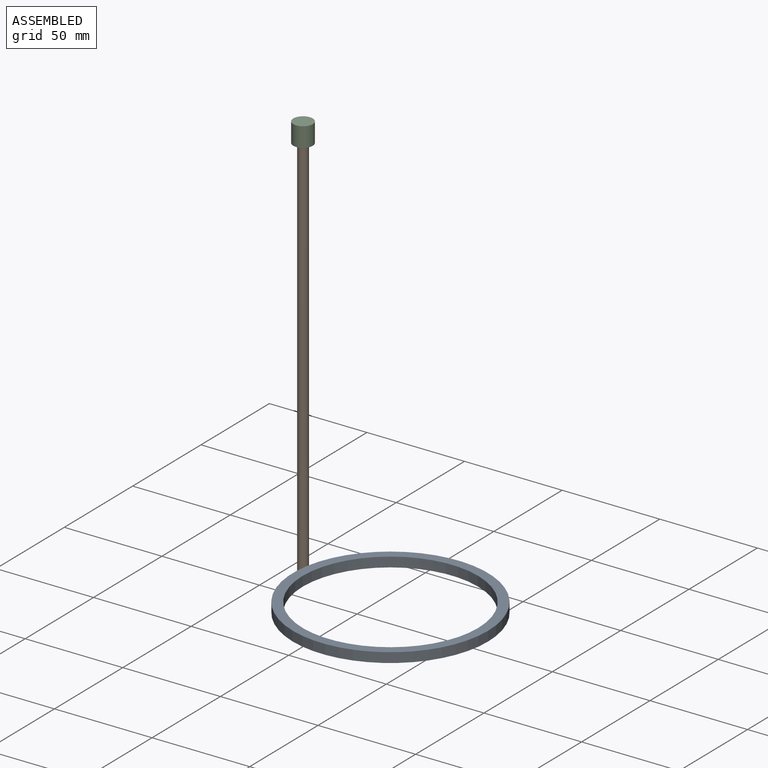
[diagram: assembled view]
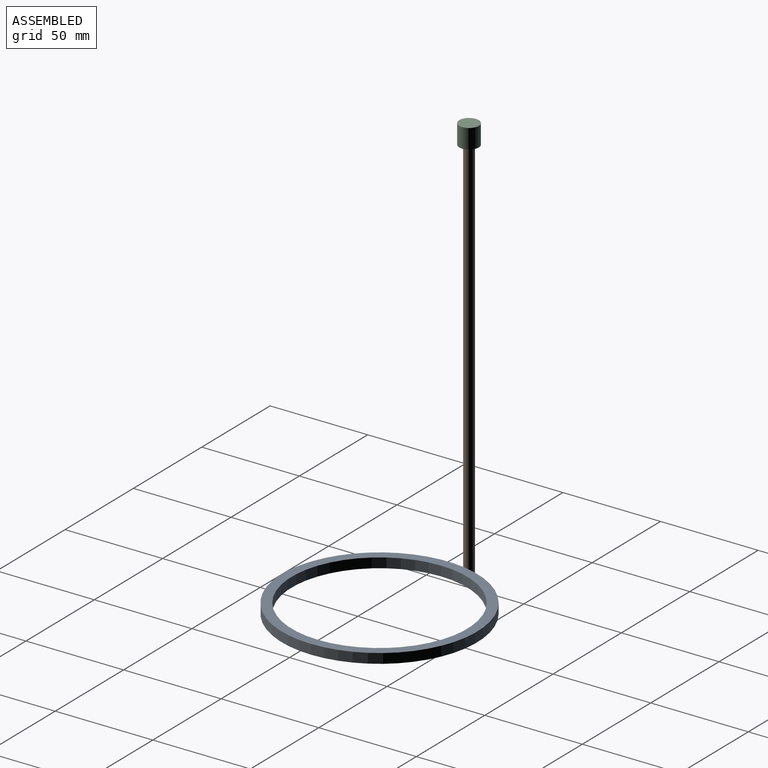
[diagram: assembled view, second angle]
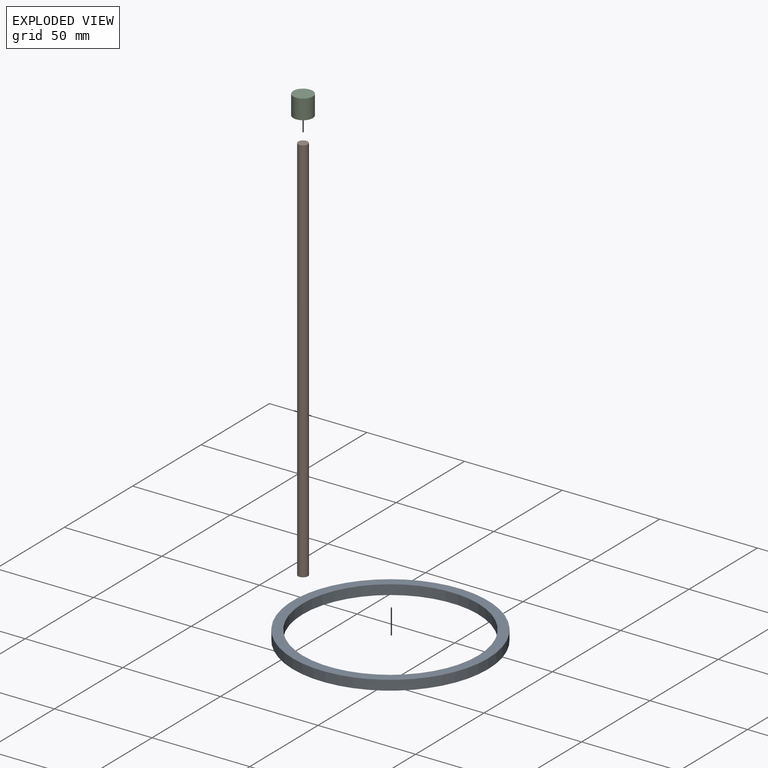
[diagram: exploded view]
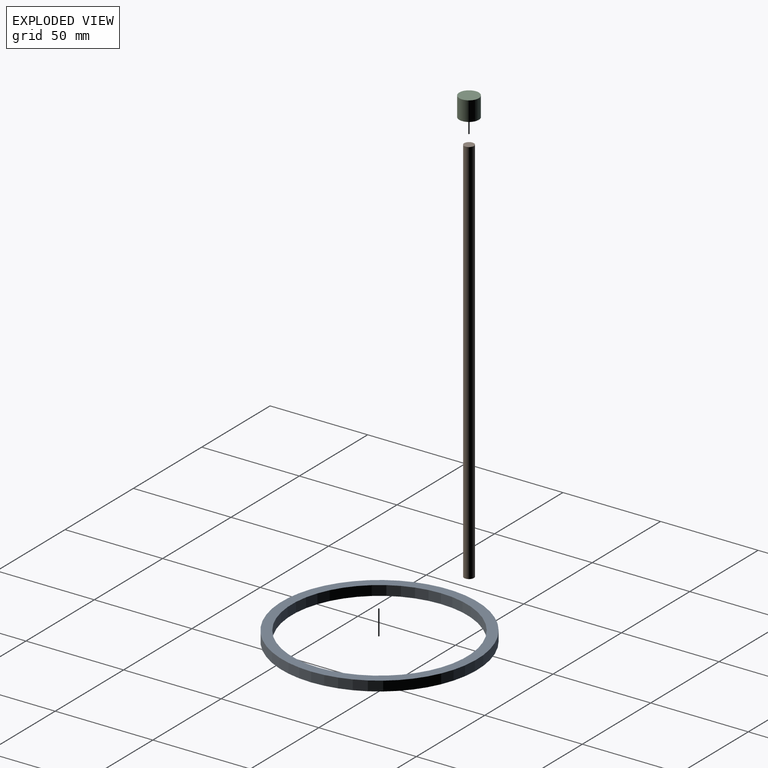
[diagram: exploded view, second angle]
ASSEMBLY  parts=3 mates=4
PART A: 4 faces, bbox 100x100x5 mm
  f0: cylinder r=50mm len=100mm, axis (0,0,-1), area 1570.8mm2, adj f1,f2
  f1: plane 100x100mm, normal (0,0,1), area 1492.3mm2, adj f0,f3
  f2: plane 100x100mm, normal (0,0,-1), area 1492.3mm2, adj f0,f3
  f3: cylinder r=45mm len=90mm, axis (0,0,-1), area 1413.7mm2, adj f1,f2
PART B: 3 faces, bbox 5x5x200 mm
  f0: cylinder r=2.5mm len=200mm, axis (0,0,1), area 3141.6mm2, adj f1,f2
  f1: plane 5x5mm, normal (0,0,-1), area 19.6mm2, adj f0
  f2: plane 5x5mm, normal (0,0,1), area 19.6mm2, adj f0
PART C: 3 faces, bbox 10x10x10 mm
  f0: cylinder r=5mm len=10mm, axis (0,0,1), area 314.2mm2, adj f1,f2
  f1: plane 10x10mm, normal (0,0,-1), area 78.5mm2, adj f0
  f2: plane 10x10mm, normal (0,0,1), area 78.5mm2, adj f0
PLACE A t=(3.23,-1.62,-7.08)mm
PLACE B t=(-48.36,8.11,192.92)mm
PLACE C t=(-48.36,8.11,202.92)mm
MATE planar B.f0 <-> C.f0  axis (0,0,1) through (-48.36,8.11,192.92)mm
MATE parallel B.f0 <-> A.f0  axis (0,0,1) through (-48.36,8.11,-7.08)mm
MATE cylindrical C.f0 <-> B.f0  axis (0,0,1) through (-48.36,8.11,202.92)mm
MATE planar B.f0 <-> A.f0  axis (0,0,-1) through (-48.36,8.11,-7.08)mm
